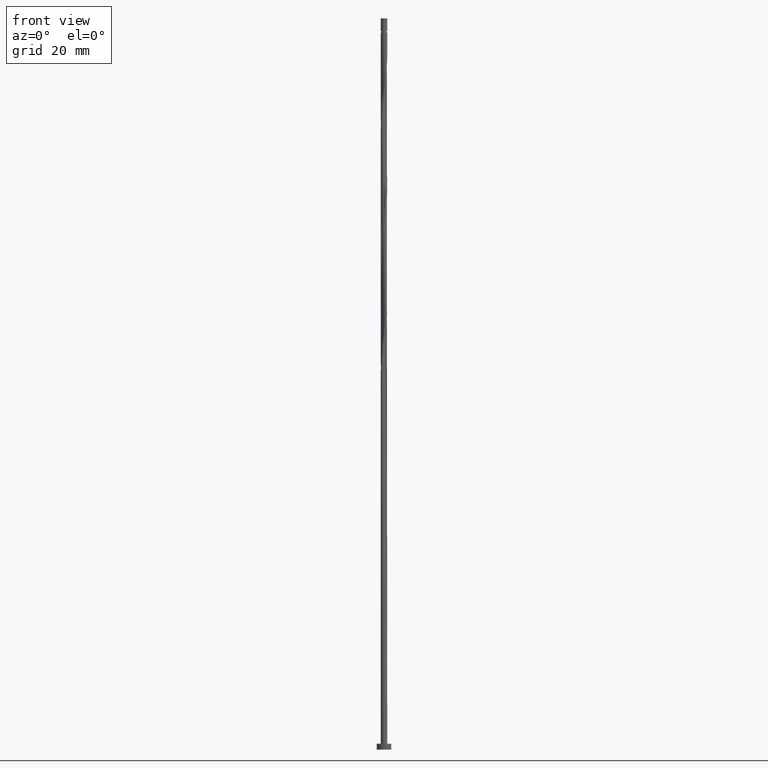
[diagram: clean part render]
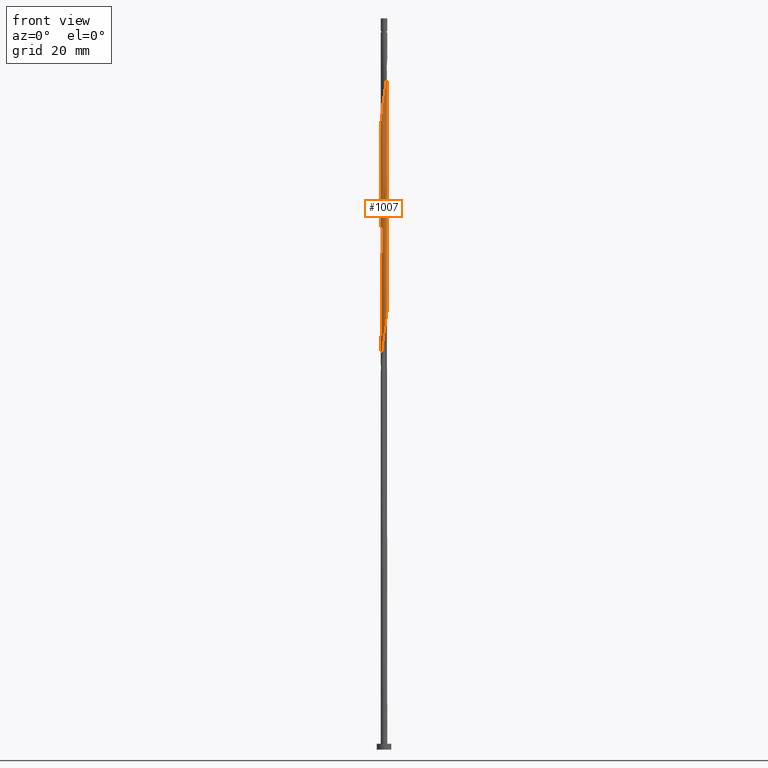
[diagram: same view with one face highlighted and labeled with its STEP entity id]
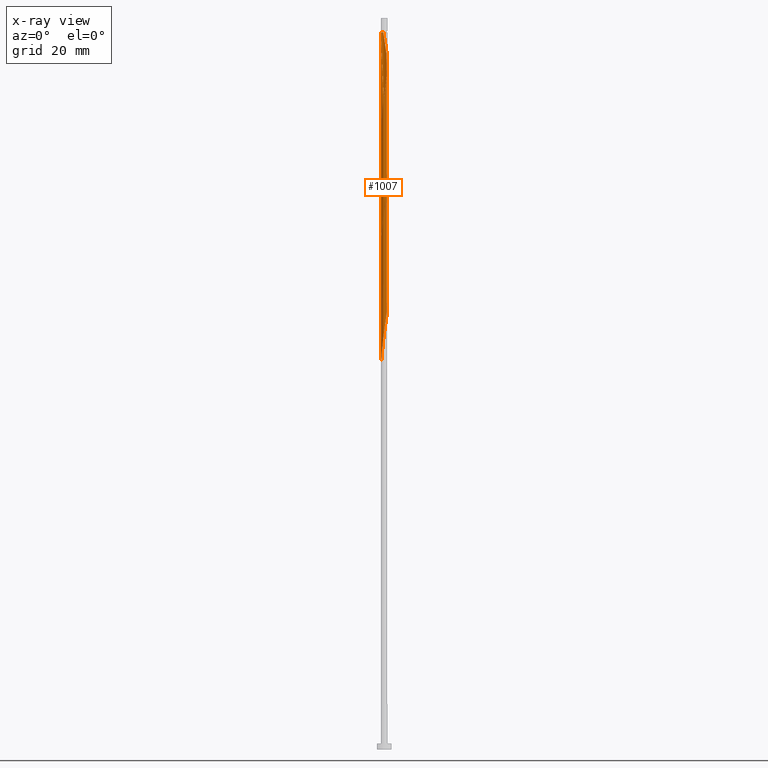
[diagram: x-ray of the same camera — body ghosted, the highlighted face saturated]
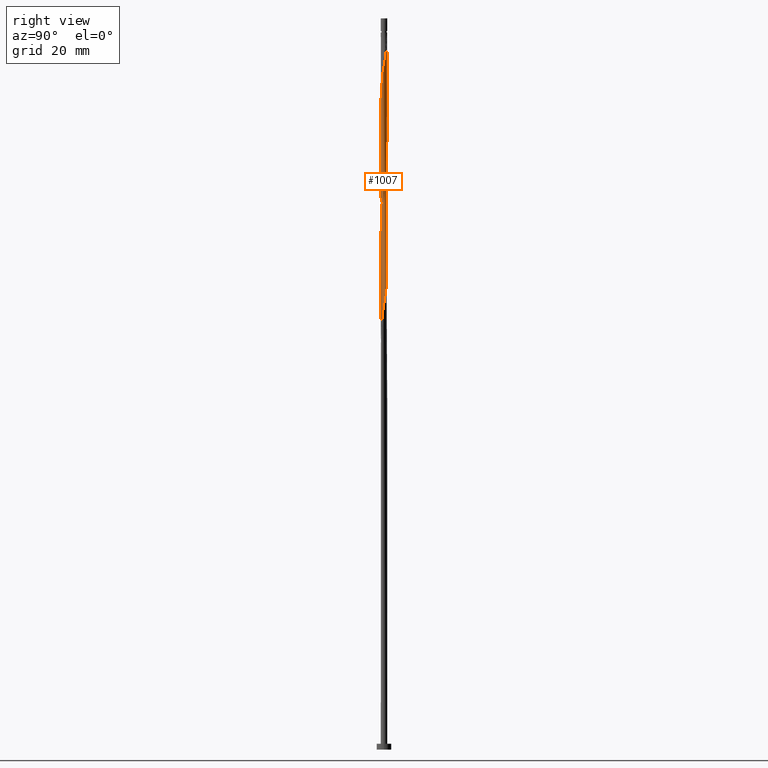
[diagram: same view with one face highlighted and labeled with its STEP entity id]
A machine part, front view. The second image highlights one B-rep face of the part: STEP entity #1007.
The next image is the same camera in x-ray: the body ghosted, the highlighted face saturated — about 0% of this face is hidden behind the body in this view.
A second angle (right view) of the same face is appended — the face is thin or edge-on in the first view.
In plain terms, the highlighted cylindrical surface (bore or boss wall) has radius 1.1 mm, axis along (-0, -0, -1).
Its self-contained STEP definition (entity closure, byte-faithful):
#3 = CARTESIAN_POINT ( 'NONE',  ( -1.043755020113495302, 0.3472397701702409356, 171.4881482341460810 ) ) ;
#9 = CARTESIAN_POINT ( 'NONE',  ( 0.9590428054949423631, -0.5550462033200859180, 229.9817379777357758 ) ) ;
#12 = CARTESIAN_POINT ( 'NONE',  ( 1.100000000000001865, 6.393663722979679263E-16, 194.4506854946532712 ) ) ;
#16 = VECTOR ( 'NONE', #84, 1000.000000000000000 ) ;
#22 = VERTEX_POINT ( 'NONE', #221 ) ;
#23 = CARTESIAN_POINT ( 'NONE',  ( 1.085569539318544940, 0.1775915969400753691, 153.8599431059409426 ) ) ;
#29 = VERTEX_POINT ( 'NONE', #895 ) ;
#30 = CARTESIAN_POINT ( 'NONE',  ( 0.4705187664120764057, 0.9942897417021168138, 160.2701995161973230 ) ) ;
#44 = CARTESIAN_POINT ( 'NONE',  ( -0.9303254799112120610, 0.5869365395236326721, 211.5522507982485649 ) ) ;
#47 = CARTESIAN_POINT ( 'NONE',  ( 1.064006015414472150, -0.3094036033298094290, 231.5843020802998353 ) ) ;
#54 = CARTESIAN_POINT ( 'NONE',  ( -0.08800433824986134135, -1.104578936536840139, 141.8407123367101121 ) ) ;
#71 = DIRECTION ( 'NONE',  ( -0.000000000000000000, -0.000000000000000000, -1.000000000000000000 ) ) ;
#84 = DIRECTION ( 'NONE',  ( -0.000000000000000000, -0.000000000000000000, -1.000000000000000000 ) ) ;
#85 =( BOUNDED_CURVE ( )  B_SPLINE_CURVE ( 2, ( #922, #541, #1174, #1704, #1467, #1448, #522, #272, #1561, #1039, #804, #787, #1328, #640, #1160, #504, #678, #999, #333, #1637, #718, #857, #1070, #9, #845, #47, #200, #586, #1647, #1245, #707, #473, #1119, #1389, #456, #482, #994, #145, #341, #1534, #193, #613, #1476 ),
 .UNSPECIFIED., .F., .T. ) 
 B_SPLINE_CURVE_WITH_KNOTS ( ( 3, 2, 2, 2, 2, 2, 2, 2, 2, 2, 2, 2, 2, 2, 2, 2, 2, 2, 2, 2, 2, 3 ),
 ( 0.5545271625973828833, 0.5576923076923077094, 0.5673076923076922906, 0.5769230769230768718, 0.5865384615384615641, 0.5961538461538461453, 0.6057692307692308376, 0.6153846153846154188, 0.6250000000000000000, 0.6346153846153845812, 0.6442307692307691624, 0.6538461538461538547, 0.6634615384615384359, 0.6730769230769231282, 0.6826923076923077094, 0.6923076923076922906, 0.7019230769230768718, 0.7115384615384615641, 0.7211538461538461453, 0.7307692307692308376, 0.7403846153846154188, 0.7500000000000000000 ),
 .UNSPECIFIED. ) 
 CURVE ( )  GEOMETRIC_REPRESENTATION_ITEM ( )  RATIONAL_B_SPLINE_CURVE ( ( 0.9061636035683356960, 0.9069090390691243453, 0.9090909090909813361, 0.9024626128164844330, 0.9090909090909813361, 0.9024626128164844330, 0.9090909090909813361, 0.9024626128164844330, 0.9090909090909813361, 0.9024626128164844330, 0.9090909090909813361, 0.9024626128164844330, 0.9090909090909813361, 0.9024626128164844330, 0.9090909090909813361, 0.9024626128164844330, 0.9090909090909813361, 0.9024626128164844330, 0.9090909090909813361, 0.9024626128164844330, 0.9090909090909813361, 0.9024626128164844330, 0.9090909090909813361, 0.9024626128164844330, 0.9090909090909813361, 0.9024626128164844330, 0.9090909090909813361, 0.9024626128164844330, 0.9090909090909813361, 0.9024626128164844330, 0.9090909090909813361, 0.9024626128164844330, 0.9090909090909813361, 0.9024626128164844330, 0.9090909090909813361, 0.9024626128164844330, 0.9090909090909813361, 0.9024626128164844330, 0.9090909090909813361, 0.9024626128164844330, 0.9090909090909813361, 0.9024626128164844330, 0.9090909090909813361 ) ) 
 REPRESENTATION_ITEM ( '' )  );
#91 = VERTEX_POINT ( 'NONE', #497 ) ;
#99 = CARTESIAN_POINT ( 'NONE',  ( 0.5912473987470960868, 0.9371584199410711857, 201.1355841315819362 ) ) ;
#100 = VECTOR ( 'NONE', #1473, 1000.000000000000000 ) ;
#112 = EDGE_CURVE ( 'NONE', #967, #688, #1338, .T. ) ;
#118 = CARTESIAN_POINT ( 'NONE',  ( 0.2188972361634584363, 1.078000000000001846, 203.5394302854280681 ) ) ;
#130 = CARTESIAN_POINT ( 'NONE',  ( 1.085917561661207564, -0.2205049656298700700, 193.1227636187613541 ) ) ;
#132 = AXIS2_PLACEMENT_3D ( 'NONE', #1250, #71, #610 ) ;
#136 = CARTESIAN_POINT ( 'NONE',  ( 0.000000000000000000, 0.000000000000000000, 245.2060969520947538 ) ) ;
#139 = CARTESIAN_POINT ( 'NONE',  ( 1.096525312441912758, -0.08736268753976475510, 193.9240456700434834 ) ) ;
#145 = CARTESIAN_POINT ( 'NONE',  ( 0.4353994555731701133, 1.018953730391247703, 241.1996866956844769 ) ) ;
#155 = CARTESIAN_POINT ( 'NONE',  ( -0.6947954562229512465, -0.8527949777126654363, 179.5009687469665209 ) ) ;
#170 = CARTESIAN_POINT ( 'NONE',  ( -0.7983435136988061842, -0.7684315354842592427, 137.0330200290178482 ) ) ;
#178 = CARTESIAN_POINT ( 'NONE',  ( 0.08800433824986110543, 1.104578936536840139, 162.6740456700434834 ) ) ;
#180 = CARTESIAN_POINT ( 'NONE',  ( -1.100000000000001865, -5.832816027981461247E-16, 215.2840188279866140 ) ) ;
#189 = FACE_OUTER_BOUND ( 'NONE', #508, .T. ) ;
#191 = CARTESIAN_POINT ( 'NONE',  ( -0.7628288044120180578, 0.7925226906274266403, 209.9496866956844769 ) ) ;
#193 = CARTESIAN_POINT ( 'NONE',  ( 0.04544580579190084235, 1.099060816668453899, 243.6035328495306658 ) ) ;
#200 = CARTESIAN_POINT ( 'NONE',  ( 1.085569539318544940, -0.1775915969400755912, 232.3855841315819362 ) ) ;
#209 = AXIS2_PLACEMENT_3D ( 'NONE', #136, #242, #1310 ) ;
#215 = DIRECTION ( 'NONE',  ( -0.000000000000000000, -0.000000000000000000, -1.000000000000000000 ) ) ;
#221 = CARTESIAN_POINT ( 'NONE',  ( -1.100000000000001865, -1.106739451463149244E-15, 131.9506854946532712 ) ) ;
#242 = DIRECTION ( 'NONE',  ( -0.000000000000000000, -0.000000000000000000, -1.000000000000000000 ) ) ;
#245 = CARTESIAN_POINT ( 'NONE',  ( 0.3071477027034154039, -1.056248213595657903, 185.9112251572229582 ) ) ;
#253 = CARTESIAN_POINT ( 'NONE',  ( 0.8590584812566415263, -0.6998985043366536818, 189.9176354136332066 ) ) ;
#265 = CARTESIAN_POINT ( 'NONE',  ( -0.4705187664120756286, -0.9942897417021170359, 181.1035328495306373 ) ) ;
#272 = CARTESIAN_POINT ( 'NONE',  ( -0.8590584812566417483, -0.6998985043366530157, 217.1612251572229582 ) ) ;
#276 = CARTESIAN_POINT ( 'NONE',  ( -0.7628288044120180578, 0.7925226906274266403, 168.2830200290178198 ) ) ;
#291 = CARTESIAN_POINT ( 'NONE',  ( 1.011524410454707867, 0.4322249033249470629, 155.4625072085050590 ) ) ;
#304 = CARTESIAN_POINT ( 'NONE',  ( -0.4705187664120756286, -0.9942897417021170359, 139.4368661828640086 ) ) ;
#314 = ORIENTED_EDGE ( 'NONE', *, *, #401, .F. ) ;
#315 = CARTESIAN_POINT ( 'NONE',  ( 0.3071477027034154039, -1.056248213595657903, 144.2445584905562725 ) ) ;
#330 = EDGE_CURVE ( 'NONE', #1024, #688, #85, .T. ) ;
#331 = CARTESIAN_POINT ( 'NONE',  ( -1.001592478565782596, 0.4739745747106118290, 212.3535328495306942 ) ) ;
#333 = CARTESIAN_POINT ( 'NONE',  ( 0.4705187664120749624, -0.9942897417021169248, 225.9753277213255274 ) ) ;
#340 = CARTESIAN_POINT ( 'NONE',  ( -1.043755020113495302, 0.3472397701702409356, 213.1548149008126813 ) ) ;
#341 = CARTESIAN_POINT ( 'NONE',  ( 0.3071477027034160145, 1.056248213595657237, 242.0009687469665209 ) ) ;
#348 = CARTESIAN_POINT ( 'NONE',  ( 0.6947954562229516906, 0.8527949777126649922, 200.3343020802998637 ) ) ;
#357 = LINE ( 'NONE', #1161, #1155 ) ;
#359 = CARTESIAN_POINT ( 'NONE',  ( 0.08800433824986110543, 1.104578936536840139, 204.3407123367101690 ) ) ;
#364 = ORIENTED_EDGE ( 'NONE', *, *, #829, .T. ) ;
#382 =( BOUNDED_CURVE ( )  B_SPLINE_CURVE ( 2, ( #1495, #465, #1253, #706, #340, #331, #44, #582, #191, #1521, #1387, #472, #1532, #864, #1299, #359, #118, #1025, #761, #99, #348, #753, #1415, #874, #1675, #745, #493, #1272, #898 ),
 .UNSPECIFIED., .F., .T. ) 
 B_SPLINE_CURVE_WITH_KNOTS ( ( 3, 2, 2, 2, 2, 2, 2, 2, 2, 2, 2, 2, 2, 2, 3 ),
 ( 0.4295271625973832164, 0.4326923076923077094, 0.4423076923076922906, 0.4519230769230769273, 0.4615384615384615641, 0.4711538461538461453, 0.4807692307692307820, 0.4903846153846153633, 0.5000000000000000000, 0.5096153846153845812, 0.5192307692307692735, 0.5288461538461538547, 0.5384615384615384359, 0.5480769230769231282, 0.5545271625973832164 ),
 .UNSPECIFIED. ) 
 CURVE ( )  GEOMETRIC_REPRESENTATION_ITEM ( )  RATIONAL_B_SPLINE_CURVE ( ( 0.9061636035683366952, 0.9069090390691253445, 0.9090909090909821133, 0.9024626128164852101, 0.9090909090909821133, 0.9024626128164852101, 0.9090909090909821133, 0.9024626128164852101, 0.9090909090909821133, 0.9024626128164852101, 0.9090909090909821133, 0.9024626128164852101, 0.9090909090909821133, 0.9024626128164852101, 0.9090909090909821133, 0.9024626128164852101, 0.9090909090909821133, 0.9024626128164852101, 0.9090909090909821133, 0.9024626128164852101, 0.9090909090909821133, 0.9024626128164852101, 0.9090909090909821133, 0.9024626128164852101, 0.9090909090909821133, 0.9024626128164852101, 0.9090909090909821133, 0.9046444828383419789, 0.9061636035683368062 ) ) 
 REPRESENTATION_ITEM ( '' )  );
#401 = EDGE_CURVE ( 'NONE', #91, #29, #529, .T. ) ;
#405 = CARTESIAN_POINT ( 'NONE',  ( 1.043755020113495302, -0.3472397701702413797, 192.3214815674793954 ) ) ;
#414 = CARTESIAN_POINT ( 'NONE',  ( -0.2188972361634583252, -1.078000000000001846, 182.7060969520948106 ) ) ;
#424 = CARTESIAN_POINT ( 'NONE',  ( -1.099999999999982103, 0.000000000000000000, 245.2060969520947538 ) ) ;
#430 = CARTESIAN_POINT ( 'NONE',  ( -1.100000000000002309, -0.08938208239074874051, 132.4903862320016685 ) ) ;
#440 = CARTESIAN_POINT ( 'NONE',  ( 0.3497901340770558365, 1.051421063463162664, 161.0714815674793670 ) ) ;
#451 = CARTESIAN_POINT ( 'NONE',  ( -0.3071477027034154039, 1.056248213595657903, 165.0778918238896722 ) ) ;
#456 = CARTESIAN_POINT ( 'NONE',  ( 0.7628288044120180578, 0.7925226906274259742, 238.7958405418383165 ) ) ;
#463 = CARTESIAN_POINT ( 'NONE',  ( -0.5912473987470959758, -0.9371584199410711857, 138.6355841315819646 ) ) ;
#465 = CARTESIAN_POINT ( 'NONE',  ( -1.100000000000002087, 0.04375044337044548676, 215.0198479123536970 ) ) ;
#472 = CARTESIAN_POINT ( 'NONE',  ( -0.4353994555731698357, 1.018953730391247925, 207.5458405418383165 ) ) ;
#473 = CARTESIAN_POINT ( 'NONE',  ( 1.001592478565782152, 0.4739745747106112184, 236.3919943879921561 ) ) ;
#482 = CARTESIAN_POINT ( 'NONE',  ( 0.6665991275673944783, 0.8851468769181987106, 239.5971225931203605 ) ) ;
#493 = CARTESIAN_POINT ( 'NONE',  ( 1.085569539318544940, 0.1775915969400753691, 195.5266097726076282 ) ) ;
#497 = CARTESIAN_POINT ( 'NONE',  ( 1.100000000000000089, 1.347111479062088503E-16, 245.2060969520947822 ) ) ;
#503 =( BOUNDED_CURVE ( )  B_SPLINE_CURVE ( 2, ( #12, #807, #139, #130, #405, #659, #1178, #253, #926, #1708, #784, #1606, #245, #1032, #526, #1458, #414, #1341, #265, #517, #155, #1169, #1315, #911, #1445, #799, #1323, #1042, #674, #1194, #3, #1064, #937, #1470, #276, #862, #817, #591, #451, #1219, #1211, #178, #689, #440, #30, #1358, #568, #968, #1088, #1632, #291, #1654, #23, #949, #1643, #1528, #841, #562, #1347, #714, #958, #1506, #579, #1393, #315, #1371, #1493, #54, #851, #1125, #304, #463, #1078, #170, #977, #703, #1519, #1100, #1615, #430, #1385 ),
 .UNSPECIFIED., .F., .T. ) 
 B_SPLINE_CURVE_WITH_KNOTS ( ( 3, 2, 2, 2, 2, 2, 2, 2, 2, 2, 2, 2, 2, 2, 2, 2, 2, 2, 2, 2, 2, 2, 2, 2, 2, 2, 2, 2, 2, 2, 2, 2, 2, 2, 2, 2, 2, 2, 2, 2, 3 ),
 ( 0.5545271625973832164, 0.5576923076923077094, 0.5673076923076922906, 0.5769230769230768718, 0.5865384615384615641, 0.5961538461538461453, 0.6057692307692307265, 0.6153846153846154188, 0.6250000000000000000, 0.6346153846153845812, 0.6442307692307692735, 0.6538461538461538547, 0.6634615384615384359, 0.6730769230769231282, 0.6826923076923077094, 0.6923076923076922906, 0.7019230769230768718, 0.7115384615384615641, 0.7211538461538461453, 0.7307692307692307265, 0.7403846153846154188, 0.7500000000000000000, 0.7596153846153845812, 0.7692307692307692735, 0.7788461538461538547, 0.7884615384615384359, 0.7980769230769231282, 0.8076923076923077094, 0.8173076923076922906, 0.8269230769230768718, 0.8365384615384615641, 0.8461538461538461453, 0.8557692307692307265, 0.8653846153846154188, 0.8750000000000000000, 0.8846153846153845812, 0.8942307692307692735, 0.9038461538461537437, 0.9134615384615383249, 0.9230769230769231282, 0.9295271625973833274 ),
 .UNSPECIFIED. ) 
 CURVE ( )  GEOMETRIC_REPRESENTATION_ITEM ( )  RATIONAL_B_SPLINE_CURVE ( ( 0.9061636035683368062, 0.9069090390691254555, 0.9090909090909821133, 0.9024626128164852101, 0.9090909090909821133, 0.9024626128164852101, 0.9090909090909821133, 0.9024626128164852101, 0.9090909090909821133, 0.9024626128164852101, 0.9090909090909821133, 0.9024626128164852101, 0.9090909090909821133, 0.9024626128164852101, 0.9090909090909821133, 0.9024626128164852101, 0.9090909090909821133, 0.9024626128164852101, 0.9090909090909821133, 0.9024626128164852101, 0.9090909090909821133, 0.9024626128164852101, 0.9090909090909821133, 0.9024626128164852101, 0.9090909090909821133, 0.9024626128164852101, 0.9090909090909821133, 0.9024626128164852101, 0.9090909090909821133, 0.9024626128164852101, 0.9090909090909821133, 0.9024626128164852101, 0.9090909090909821133, 0.9024626128164852101, 0.9090909090909821133, 0.9024626128164852101, 0.9090909090909821133, 0.9024626128164852101, 0.9090909090909821133, 0.9024626128164852101, 0.9090909090909821133, 0.9024626128164852101, 0.9090909090909821133, 0.9024626128164852101, 0.9090909090909821133, 0.9024626128164852101, 0.9090909090909821133, 0.9024626128164852101, 0.9090909090909821133, 0.9024626128164852101, 0.9090909090909821133, 0.9024626128164852101, 0.9090909090909821133, 0.9024626128164852101, 0.9090909090909821133, 0.9024626128164852101, 0.9090909090909821133, 0.9024626128164852101, 0.9090909090909821133, 0.9024626128164852101, 0.9090909090909821133, 0.9024626128164852101, 0.9090909090909821133, 0.9024626128164852101, 0.9090909090909821133, 0.9024626128164852101, 0.9090909090909821133, 0.9024626128164852101, 0.9090909090909821133, 0.9024626128164852101, 0.9090909090909821133, 0.9024626128164852101, 0.9090909090909821133, 0.9024626128164852101, 0.9090909090909821133, 0.9024626128164852101, 0.9090909090909821133, 0.9024626128164852101, 0.9090909090909821133, 0.9046444828383417569, 0.9061636035683366952 ) ) 
 REPRESENTATION_ITEM ( '' )  );
#504 = CARTESIAN_POINT ( 'NONE',  ( 0.08800433824986064746, -1.104578936536840139, 223.5714815674793101 ) ) ;
#508 = EDGE_LOOP ( 'NONE', ( #776, #790, #578, #364, #1680, #314, #1392, #1260 ) ) ;
#517 = CARTESIAN_POINT ( 'NONE',  ( -0.5912473987470959758, -0.9371584199410711857, 180.3022507982485649 ) ) ;
#522 = CARTESIAN_POINT ( 'NONE',  ( -0.9303254799112120610, -0.5869365395236322280, 216.3599431059408857 ) ) ;
#526 = CARTESIAN_POINT ( 'NONE',  ( 0.04544580579189947539, -1.099060816668453899, 184.3086610546588702 ) ) ;
#529 = LINE ( 'NONE', #939, #100 ) ;
#541 = CARTESIAN_POINT ( 'NONE',  ( -1.100000000000002309, -0.04375044337044033810, 212.8923459918358105 ) ) ;
#562 = CARTESIAN_POINT ( 'NONE',  ( 1.001592478565782596, -0.4739745747106117735, 149.8535328495306373 ) ) ;
#568 = CARTESIAN_POINT ( 'NONE',  ( 0.6947954562229516906, 0.8527949777126649922, 158.6676354136332066 ) ) ;
#578 = ORIENTED_EDGE ( 'NONE', *, *, #330, .F. ) ;
#579 = CARTESIAN_POINT ( 'NONE',  ( 0.5509992915702816019, -0.9520503036547239839, 145.8471225931204174 ) ) ;
#582 = CARTESIAN_POINT ( 'NONE',  ( -0.8590584812566419703, 0.6998985043366533487, 210.7509687469665494 ) ) ;
#586 = CARTESIAN_POINT ( 'NONE',  ( 1.107133063222617286, -0.04577959055034185043, 233.1868661828639517 ) ) ;
#591 = CARTESIAN_POINT ( 'NONE',  ( -0.4353994555731698357, 1.018953730391247925, 165.8791738751716878 ) ) ;
#610 = DIRECTION ( 'NONE',  ( -1.000000000000000000, 0.000000000000000000, 0.000000000000000000 ) ) ;
#613 = CARTESIAN_POINT ( 'NONE',  ( -0.08800433824986052256, 1.104578936536840139, 244.4048149008126813 ) ) ;
#632 = LINE ( 'NONE', #1682, #16 ) ;
#640 = CARTESIAN_POINT ( 'NONE',  ( -0.1788959498336609999, -1.093542696800067437, 221.9689174649152790 ) ) ;
#659 = CARTESIAN_POINT ( 'NONE',  ( 1.001592478565782596, -0.4739745747106117735, 191.5201995161973230 ) ) ;
#674 = CARTESIAN_POINT ( 'NONE',  ( -1.096525312441912758, 0.08736268753976413060, 173.0907123367101406 ) ) ;
#678 = CARTESIAN_POINT ( 'NONE',  ( 0.2188972361634580477, -1.078000000000001624, 224.3727636187614110 ) ) ;
#688 = VERTEX_POINT ( 'NONE', #1375 ) ;
#689 = CARTESIAN_POINT ( 'NONE',  ( 0.2188972361634584363, 1.078000000000001846, 161.8727636187614110 ) ) ;
#703 = CARTESIAN_POINT ( 'NONE',  ( -0.9590428054949430292, -0.5550462033200855849, 135.4304559264537318 ) ) ;
#706 = CARTESIAN_POINT ( 'NONE',  ( -1.085917561661207564, 0.2205049656298699312, 213.9560969520947253 ) ) ;
#707 = CARTESIAN_POINT ( 'NONE',  ( 1.043755020113495080, 0.3472397701702399919, 235.5907123367101690 ) ) ;
#714 = CARTESIAN_POINT ( 'NONE',  ( 0.8590584812566415263, -0.6998985043366536818, 148.2509687469665209 ) ) ;
#718 = CARTESIAN_POINT ( 'NONE',  ( 0.6947954562229508024, -0.8527949777126651032, 227.5778918238895585 ) ) ;
#723 = CYLINDRICAL_SURFACE ( 'NONE', #132, 1.100000000000000089 ) ;
#745 = CARTESIAN_POINT ( 'NONE',  ( 1.064006015414472817, 0.3094036033298082633, 196.3278918238896722 ) ) ;
#753 = CARTESIAN_POINT ( 'NONE',  ( 0.7983435136988064063, 0.7684315354842591317, 199.5330200290178198 ) ) ;
#761 = CARTESIAN_POINT ( 'NONE',  ( 0.4705187664120764057, 0.9942897417021168138, 201.9368661828639517 ) ) ;
#768 = VERTEX_POINT ( 'NONE', #180 ) ;
#776 = ORIENTED_EDGE ( 'NONE', *, *, #1159, .F. ) ;
#784 = CARTESIAN_POINT ( 'NONE',  ( 0.5509992915702816019, -0.9520503036547239839, 187.5137892597871314 ) ) ;
#787 = CARTESIAN_POINT ( 'NONE',  ( -0.4353994555731699467, -1.018953730391247703, 220.3663533623511626 ) ) ;
#790 = ORIENTED_EDGE ( 'NONE', *, *, #112, .T. ) ;
#799 = CARTESIAN_POINT ( 'NONE',  ( -1.064006015414472817, -0.3094036033298087629, 175.4945584905562441 ) ) ;
#804 = CARTESIAN_POINT ( 'NONE',  ( -0.5509992915702820460, -0.9520503036547232067, 219.5650713110691470 ) ) ;
#807 = CARTESIAN_POINT ( 'NONE',  ( 1.100000000000001865, -0.04375044337044577819, 194.1865145790202973 ) ) ;
#809 = EDGE_CURVE ( 'NONE', #768, #29, #382, .T. ) ;
#817 = CARTESIAN_POINT ( 'NONE',  ( -0.5509992915702817129, 0.9520503036547238729, 166.6804559264537602 ) ) ;
#829 = EDGE_CURVE ( 'NONE', #1024, #22, #632, .T. ) ;
#841 = CARTESIAN_POINT ( 'NONE',  ( 1.043755020113495302, -0.3472397701702413797, 150.6548149008127098 ) ) ;
#845 = CARTESIAN_POINT ( 'NONE',  ( 1.011524410454707423, -0.4322249033249474515, 230.7830200290178482 ) ) ;
#851 = CARTESIAN_POINT ( 'NONE',  ( -0.2188972361634583252, -1.078000000000001846, 141.0394302854281534 ) ) ;
#857 = CARTESIAN_POINT ( 'NONE',  ( 0.7983435136988059622, -0.7684315354842593537, 228.3791738751716309 ) ) ;
#862 = CARTESIAN_POINT ( 'NONE',  ( -0.6665991275673937011, 0.8851468769181998208, 167.4817379777357758 ) ) ;
#864 = CARTESIAN_POINT ( 'NONE',  ( -0.1788959498336607223, 1.093542696800068104, 205.9432764392742570 ) ) ;
#874 = CARTESIAN_POINT ( 'NONE',  ( 0.9590428054949433623, 0.5550462033200849188, 197.9304559264537033 ) ) ;
#895 = CARTESIAN_POINT ( 'NONE',  ( 1.100000000000001865, 6.393663722979679263E-16, 194.4506854946532712 ) ) ;
#898 = CARTESIAN_POINT ( 'NONE',  ( 1.100000000000001865, 6.393663722979679263E-16, 194.4506854946532712 ) ) ;
#911 = CARTESIAN_POINT ( 'NONE',  ( -0.9590428054949430292, -0.5550462033200855849, 177.0971225931203605 ) ) ;
#922 = CARTESIAN_POINT ( 'NONE',  ( -1.100000000000002087, -7.216240342310404212E-16, 212.6281750762028935 ) ) ;
#926 = CARTESIAN_POINT ( 'NONE',  ( 0.7628288044120180578, -0.7925226906274266403, 189.1163533623511910 ) ) ;
#937 = CARTESIAN_POINT ( 'NONE',  ( -0.9303254799112120610, 0.5869365395236326721, 169.8855841315819362 ) ) ;
#939 = CARTESIAN_POINT ( 'NONE',  ( 1.100000000000000089, 1.347111479062088503E-16, 250.0000000000000000 ) ) ;
#949 = CARTESIAN_POINT ( 'NONE',  ( 1.107133063222617064, 0.04577959055034146879, 153.0586610546588986 ) ) ;
#958 = CARTESIAN_POINT ( 'NONE',  ( 0.7628288044120180578, -0.7925226906274266403, 147.4496866956845054 ) ) ;
#967 = VERTEX_POINT ( 'NONE', #424 ) ;
#968 = CARTESIAN_POINT ( 'NONE',  ( 0.7983435136988064063, 0.7684315354842591317, 157.8663533623511341 ) ) ;
#976 = EDGE_CURVE ( 'NONE', #29, #22, #503, .T. ) ;
#977 = CARTESIAN_POINT ( 'NONE',  ( -0.8786931595968748843, -0.6617388694021724138, 136.2317379777358326 ) ) ;
#994 = CARTESIAN_POINT ( 'NONE',  ( 0.5509992915702820460, 0.9520503036547232067, 240.3984046444024045 ) ) ;
#999 = CARTESIAN_POINT ( 'NONE',  ( 0.3497901340770547818, -1.051421063463162442, 225.1740456700434549 ) ) ;
#1003 = CARTESIAN_POINT ( 'NONE',  ( -1.100000000000002087, -7.216240342310404212E-16, 212.6281750762029219 ) ) ;
#1007 = ADVANCED_FACE ( 'NONE', ( #189 ), #723, .T. ) ;
#1024 = VERTEX_POINT ( 'NONE', #1003 ) ;
#1025 = CARTESIAN_POINT ( 'NONE',  ( 0.3497901340770558365, 1.051421063463162664, 202.7381482341460242 ) ) ;
#1032 = CARTESIAN_POINT ( 'NONE',  ( 0.1788959498336603338, -1.093542696800068104, 185.1099431059408857 ) ) ;
#1039 = CARTESIAN_POINT ( 'NONE',  ( -0.6665991275673939231, -0.8851468769181990437, 218.7637892597870177 ) ) ;
#1042 = CARTESIAN_POINT ( 'NONE',  ( -1.107133063222617064, -0.04577959055034188512, 173.8919943879921277 ) ) ;
#1064 = CARTESIAN_POINT ( 'NONE',  ( -1.001592478565782596, 0.4739745747106118290, 170.6868661828639802 ) ) ;
#1070 = CARTESIAN_POINT ( 'NONE',  ( 0.8786931595968741071, -0.6617388694021727469, 229.1804559264537318 ) ) ;
#1078 = CARTESIAN_POINT ( 'NONE',  ( -0.6947954562229512465, -0.8527949777126654363, 137.8343020802999490 ) ) ;
#1088 = CARTESIAN_POINT ( 'NONE',  ( 0.8786931595968748843, 0.6617388694021723028, 157.0650713110691470 ) ) ;
#1100 = CARTESIAN_POINT ( 'NONE',  ( -1.064006015414472817, -0.3094036033298087629, 133.8278918238896154 ) ) ;
#1119 = CARTESIAN_POINT ( 'NONE',  ( 0.9303254799112119500, 0.5869365395236323391, 237.1932764392742286 ) ) ;
#1125 = CARTESIAN_POINT ( 'NONE',  ( -0.3497901340770556700, -1.051421063463162664, 140.2381482341460242 ) ) ;
#1155 = VECTOR ( 'NONE', #215, 1000.000000000000000 ) ;
#1159 = EDGE_CURVE ( 'NONE', #967, #768, #357, .T. ) ;
#1160 = CARTESIAN_POINT ( 'NONE',  ( -0.04544580579190018316, -1.099060816668453899, 222.7701995161973230 ) ) ;
#1161 = CARTESIAN_POINT ( 'NONE',  ( -1.100000000000000089, 0.000000000000000000, 250.0000000000000000 ) ) ;
#1169 = CARTESIAN_POINT ( 'NONE',  ( -0.7983435136988061842, -0.7684315354842592427, 178.6996866956844769 ) ) ;
#1174 = CARTESIAN_POINT ( 'NONE',  ( -1.096525312441912314, -0.08736268753976379753, 213.1548149008127382 ) ) ;
#1178 = CARTESIAN_POINT ( 'NONE',  ( 0.9303254799112120610, -0.5869365395236327831, 190.7189174649152790 ) ) ;
#1194 = CARTESIAN_POINT ( 'NONE',  ( -1.085917561661207564, 0.2205049656298699312, 172.2894302854280966 ) ) ;
#1211 = CARTESIAN_POINT ( 'NONE',  ( -0.04544580579189982927, 1.099060816668453899, 163.4753277213255274 ) ) ;
#1219 = CARTESIAN_POINT ( 'NONE',  ( -0.1788959498336607223, 1.093542696800068104, 164.2766097726075145 ) ) ;
#1245 = CARTESIAN_POINT ( 'NONE',  ( 1.085917561661207564, 0.2205049656298696537, 234.7894302854281250 ) ) ;
#1250 = CARTESIAN_POINT ( 'NONE',  ( 0.000000000000000000, 0.000000000000000000, 250.0000000000000000 ) ) ;
#1253 = CARTESIAN_POINT ( 'NONE',  ( -1.096525312441912758, 0.08736268753976413060, 214.7573790033767978 ) ) ;
#1260 = ORIENTED_EDGE ( 'NONE', *, *, #809, .F. ) ;
#1272 = CARTESIAN_POINT ( 'NONE',  ( 1.100000000000001421, 0.08938208239074997563, 194.9903862320016117 ) ) ;
#1299 = CARTESIAN_POINT ( 'NONE',  ( -0.04544580579189982927, 1.099060816668453899, 205.1419943879921561 ) ) ;
#1310 = DIRECTION ( 'NONE',  ( -1.000000000000000000, 0.000000000000000000, 0.000000000000000000 ) ) ;
#1315 = CARTESIAN_POINT ( 'NONE',  ( -0.8786931595968748843, -0.6617388694021724138, 177.8984046444024330 ) ) ;
#1323 = CARTESIAN_POINT ( 'NONE',  ( -1.085569539318544940, -0.1775915969400752303, 174.6932764392742286 ) ) ;
#1328 = CARTESIAN_POINT ( 'NONE',  ( -0.3071477027034155149, -1.056248213595657459, 221.1676354136332350 ) ) ;
#1338 = CIRCLE ( 'NONE', #209, 1.099999999999982103 ) ;
#1341 = CARTESIAN_POINT ( 'NONE',  ( -0.3497901340770556700, -1.051421063463162664, 181.9048149008127382 ) ) ;
#1347 = CARTESIAN_POINT ( 'NONE',  ( 0.9303254799112120610, -0.5869365395236327831, 149.0522507982486218 ) ) ;
#1358 = CARTESIAN_POINT ( 'NONE',  ( 0.5912473987470960868, 0.9371584199410711857, 159.4689174649152221 ) ) ;
#1371 = CARTESIAN_POINT ( 'NONE',  ( 0.1788959498336603338, -1.093542696800068104, 143.4432764392742286 ) ) ;
#1375 = CARTESIAN_POINT ( 'NONE',  ( -0.2188972361634911878, 1.078000000000287173, 245.2060969520947822 ) ) ;
#1385 = CARTESIAN_POINT ( 'NONE',  ( -1.100000000000001865, -1.106739451463149244E-15, 131.9506854946532712 ) ) ;
#1387 = CARTESIAN_POINT ( 'NONE',  ( -0.5509992915702817129, 0.9520503036547238729, 208.3471225931203890 ) ) ;
#1389 = CARTESIAN_POINT ( 'NONE',  ( 0.8590584812566420814, 0.6998985043366526826, 237.9945584905562725 ) ) ;
#1392 = ORIENTED_EDGE ( 'NONE', *, *, #401, .T. ) ;
#1393 = CARTESIAN_POINT ( 'NONE',  ( 0.4353994555731697802, -1.018953730391247925, 145.0458405418383165 ) ) ;
#1415 = CARTESIAN_POINT ( 'NONE',  ( 0.8786931595968748843, 0.6617388694021723028, 198.7317379777357758 ) ) ;
#1445 = CARTESIAN_POINT ( 'NONE',  ( -1.011524410454707867, -0.4322249033249471739, 176.2958405418383734 ) ) ;
#1448 = CARTESIAN_POINT ( 'NONE',  ( -1.001592478565782152, -0.4739745747106117180, 215.5586610546588133 ) ) ;
#1458 = CARTESIAN_POINT ( 'NONE',  ( -0.08800433824986134135, -1.104578936536840139, 183.5073790033767978 ) ) ;
#1467 = CARTESIAN_POINT ( 'NONE',  ( -1.043755020113495080, -0.3472397701702404915, 214.7573790033768546 ) ) ;
#1470 = CARTESIAN_POINT ( 'NONE',  ( -0.8590584812566419703, 0.6998985043366533487, 169.0843020802998637 ) ) ;
#1473 = DIRECTION ( 'NONE',  ( -0.000000000000000000, -0.000000000000000000, -1.000000000000000000 ) ) ;
#1476 = CARTESIAN_POINT ( 'NONE',  ( -0.2188972361634911878, 1.078000000000287173, 245.2060969520947822 ) ) ;
#1493 = CARTESIAN_POINT ( 'NONE',  ( 0.04544580579189947539, -1.099060816668453899, 142.6419943879921846 ) ) ;
#1495 = CARTESIAN_POINT ( 'NONE',  ( -1.100000000000001865, -5.832816027981461247E-16, 215.2840188279866140 ) ) ;
#1506 = CARTESIAN_POINT ( 'NONE',  ( 0.6665991275673935901, -0.8851468769181998208, 146.6484046444024045 ) ) ;
#1519 = CARTESIAN_POINT ( 'NONE',  ( -1.011524410454707867, -0.4322249033249471739, 134.6291738751716878 ) ) ;
#1521 = CARTESIAN_POINT ( 'NONE',  ( -0.6665991275673937011, 0.8851468769181998208, 209.1484046444023761 ) ) ;
#1528 = CARTESIAN_POINT ( 'NONE',  ( 1.085917561661207564, -0.2205049656298700700, 151.4560969520947538 ) ) ;
#1532 = CARTESIAN_POINT ( 'NONE',  ( -0.3071477027034154039, 1.056248213595657903, 206.7445584905562441 ) ) ;
#1534 = CARTESIAN_POINT ( 'NONE',  ( 0.1788959498336611109, 1.093542696800067437, 242.8022507982486218 ) ) ;
#1561 = CARTESIAN_POINT ( 'NONE',  ( -0.7628288044120180578, -0.7925226906274263072, 217.9625072085050306 ) ) ;
#1606 = CARTESIAN_POINT ( 'NONE',  ( 0.4353994555731697802, -1.018953730391247925, 186.7125072085050306 ) ) ;
#1615 = CARTESIAN_POINT ( 'NONE',  ( -1.085569539318544940, -0.1775915969400752303, 133.0266097726075998 ) ) ;
#1632 = CARTESIAN_POINT ( 'NONE',  ( 0.9590428054949433623, 0.5550462033200849188, 156.2637892597870177 ) ) ;
#1637 = CARTESIAN_POINT ( 'NONE',  ( 0.5912473987470951986, -0.9371584199410714078, 226.7766097726075145 ) ) ;
#1643 = CARTESIAN_POINT ( 'NONE',  ( 1.096525312441912758, -0.08736268753976475510, 152.2573790033768262 ) ) ;
#1647 = CARTESIAN_POINT ( 'NONE',  ( 1.096525312441912314, 0.08736268753976340895, 233.9881482341460810 ) ) ;
#1654 = CARTESIAN_POINT ( 'NONE',  ( 1.064006015414472817, 0.3094036033298082633, 154.6612251572229582 ) ) ;
#1675 = CARTESIAN_POINT ( 'NONE',  ( 1.011524410454707867, 0.4322249033249470629, 197.1291738751717162 ) ) ;
#1680 = ORIENTED_EDGE ( 'NONE', *, *, #976, .F. ) ;
#1682 = CARTESIAN_POINT ( 'NONE',  ( -1.100000000000000089, 0.000000000000000000, 250.0000000000000000 ) ) ;
#1704 = CARTESIAN_POINT ( 'NONE',  ( -1.085917561661207564, -0.2205049656298697092, 213.9560969520947253 ) ) ;
#1708 = CARTESIAN_POINT ( 'NONE',  ( 0.6665991275673935901, -0.8851468769181998208, 188.3150713110691754 ) ) ;